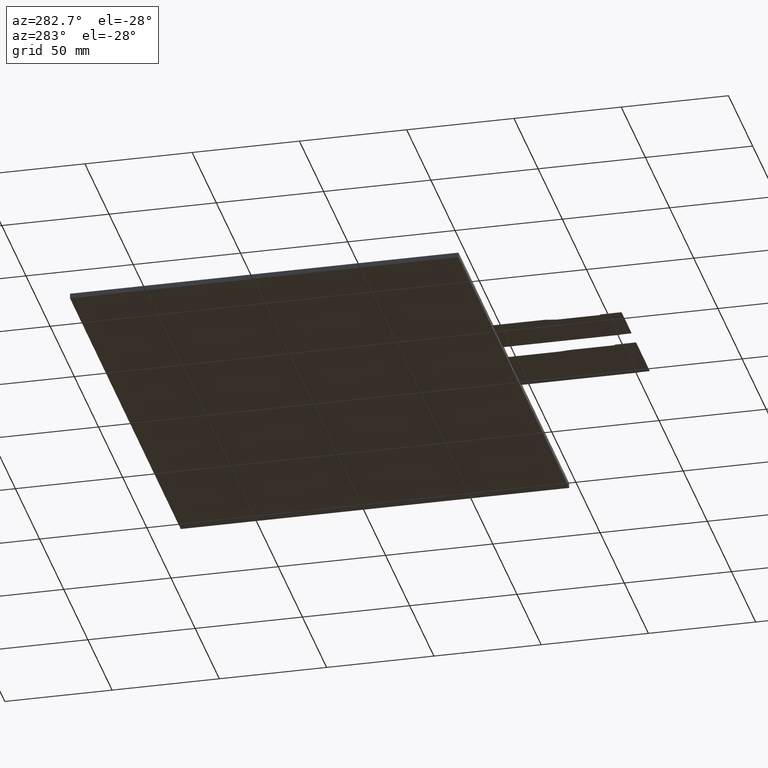
[diagram: clean part render]
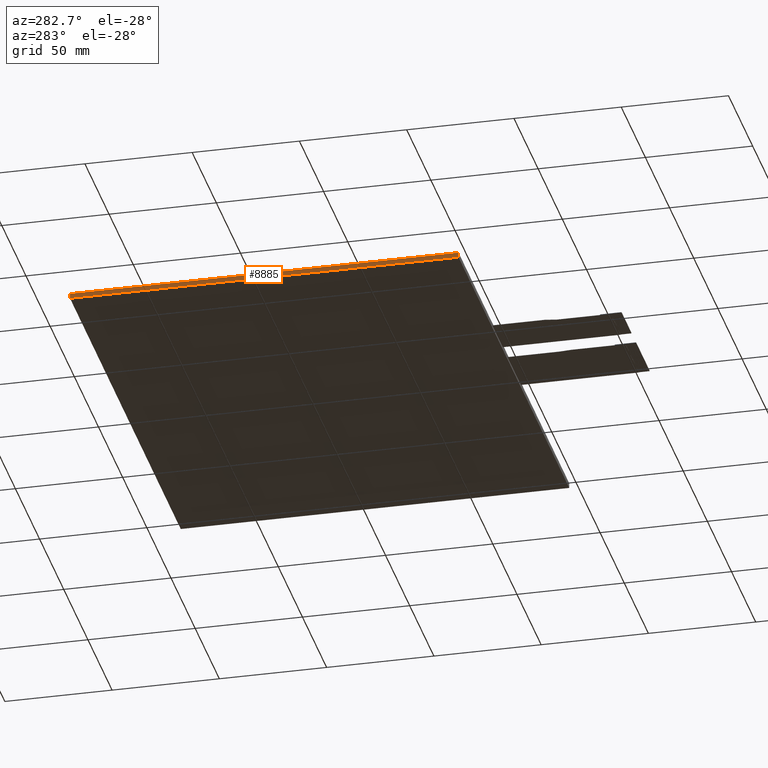
[diagram: same view with one face highlighted and labeled with its STEP entity id]
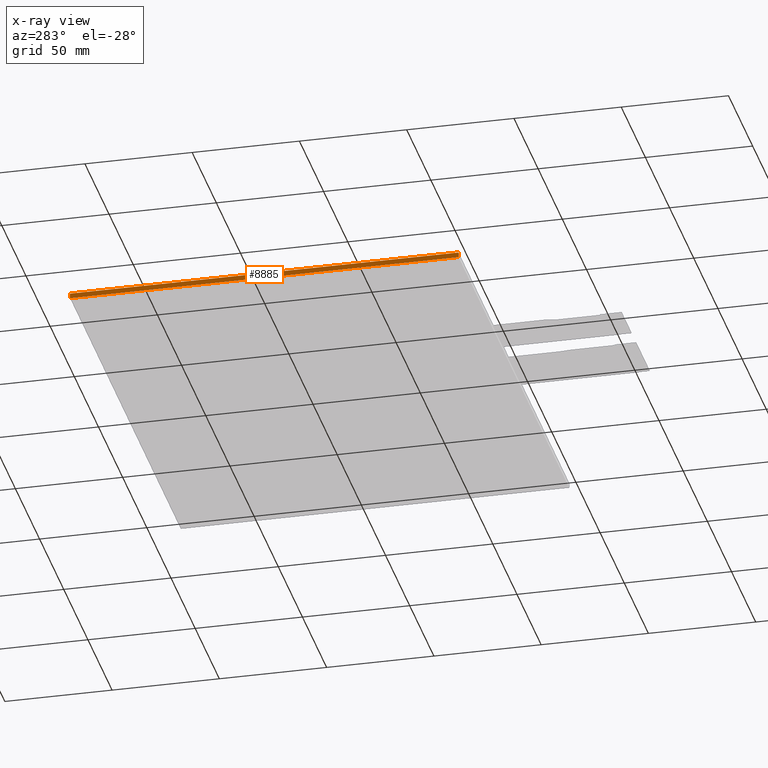
[diagram: x-ray of the same camera — body ghosted, the highlighted face saturated]
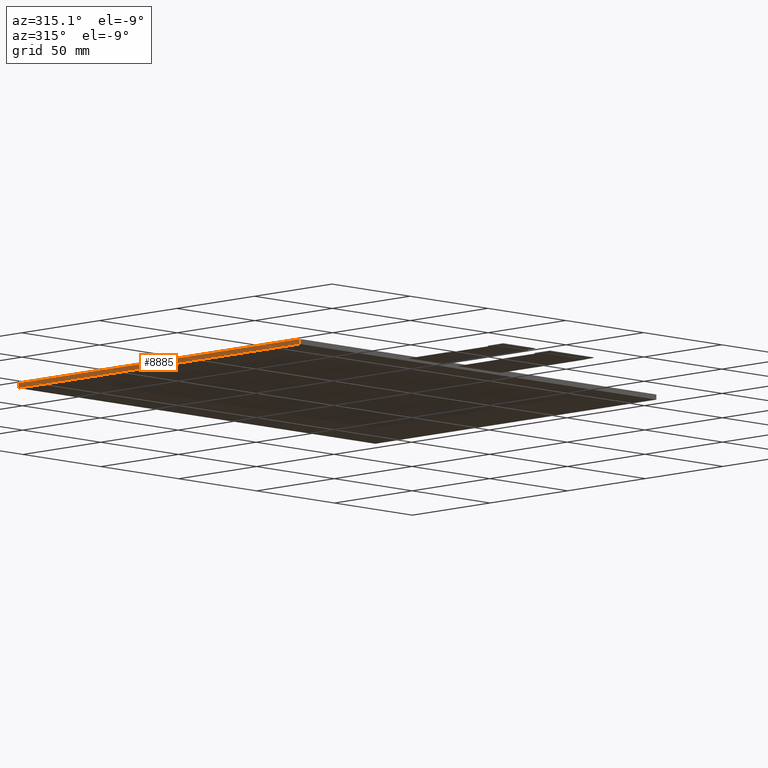
[diagram: same view with one face highlighted and labeled with its STEP entity id]
A machine part, auxiliary view. The second image highlights one B-rep face of the part: STEP entity #8885.
The next image is the same camera in x-ray: the body ghosted, the highlighted face saturated — about 0% of this face is hidden behind the body in this view.
A second angle (auxiliary view) of the same face is appended — the face is thin or edge-on in the first view.
In plain terms, the highlighted planar face has unit normal (-1, -0, 0).
Its self-contained STEP definition (entity closure, byte-faithful):
#547=PLANE('',#9335);
#969=FACE_OUTER_BOUND('',#1393,.T.);
#1393=EDGE_LOOP('',(#8433,#8434,#8435,#8436));
#2630=LINE('',#13924,#3870);
#2633=LINE('',#13930,#3873);
#2634=LINE('',#13932,#3874);
#2635=LINE('',#13933,#3875);
#3870=VECTOR('',#11420,10.);
#3873=VECTOR('',#11425,10.);
#3874=VECTOR('',#11426,10.);
#3875=VECTOR('',#11427,10.);
#4714=VERTEX_POINT('',#13921);
#4715=VERTEX_POINT('',#13923);
#4717=VERTEX_POINT('',#13929);
#4718=VERTEX_POINT('',#13931);
#5958=EDGE_CURVE('',#4714,#4715,#2630,.T.);
#5961=EDGE_CURVE('',#4714,#4717,#2633,.T.);
#5962=EDGE_CURVE('',#4718,#4717,#2634,.T.);
#5963=EDGE_CURVE('',#4715,#4718,#2635,.T.);
#8433=ORIENTED_EDGE('',*,*,#5958,.F.);
#8434=ORIENTED_EDGE('',*,*,#5961,.T.);
#8435=ORIENTED_EDGE('',*,*,#5962,.F.);
#8436=ORIENTED_EDGE('',*,*,#5963,.F.);
#8885=ADVANCED_FACE('',(#969),#547,.T.);
#9335=AXIS2_PLACEMENT_3D('',#13928,#11423,#11424);
#11420=DIRECTION('',(1.96174140187769E-16,-1.,0.));
#11423=DIRECTION('center_axis',(-1.,-1.96174140187769E-16,0.));
#11424=DIRECTION('ref_axis',(-1.96174140187769E-16,1.,0.));
#11425=DIRECTION('',(0.,0.,-1.));
#11426=DIRECTION('',(-1.96174140187769E-16,1.,0.));
#11427=DIRECTION('',(0.,0.,-1.));
#13921=CARTESIAN_POINT('',(-115.3,87.3,0.));
#13923=CARTESIAN_POINT('',(-115.3,-93.8,0.));
#13924=CARTESIAN_POINT('',(-115.3,87.3,0.));
#13928=CARTESIAN_POINT('Origin',(-115.3,-93.8,0.));
#13929=CARTESIAN_POINT('',(-115.3,87.3,-2.35));
#13930=CARTESIAN_POINT('',(-115.3,87.3,0.));
#13931=CARTESIAN_POINT('',(-115.3,-93.8,-2.35));
#13932=CARTESIAN_POINT('',(-115.3,87.3,-2.35));
#13933=CARTESIAN_POINT('',(-115.3,-93.8,0.));